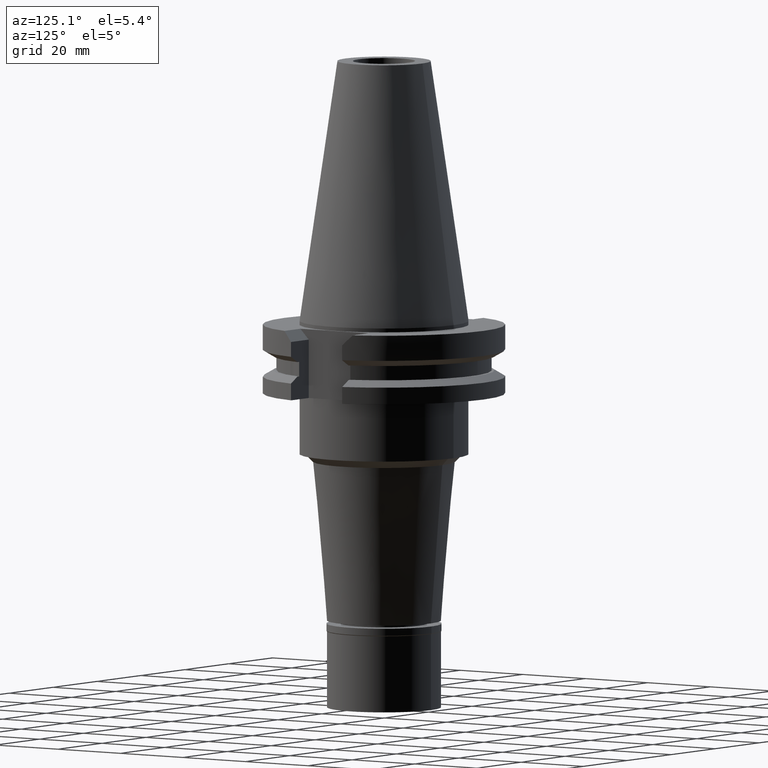
[diagram: clean part render]
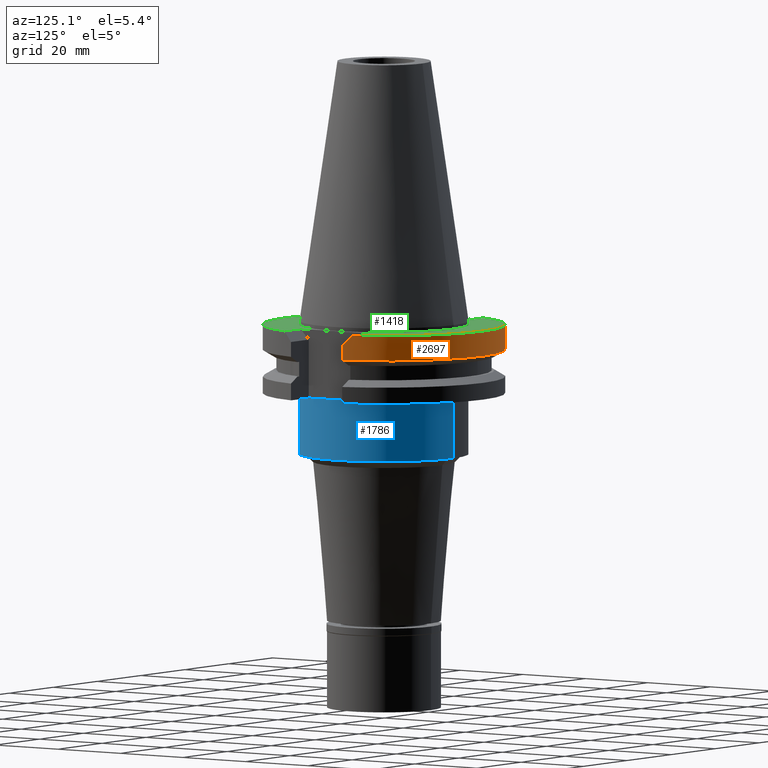
[diagram: same view with three faces highlighted in distinct colors, each labeled with its STEP entity id]
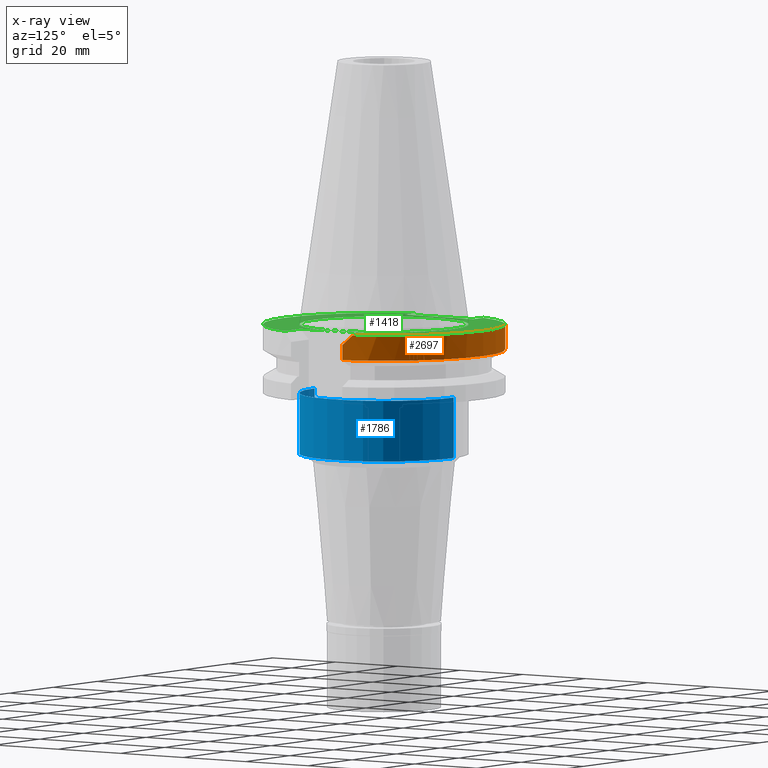
[diagram: x-ray of the same camera — body ghosted, the three highlighted faces saturated]
A machine part, auxiliary view with three faces highlighted in distinct colors.
The next image is the same camera in x-ray (body ghosted, the three faces saturated) — at least one of them is partly hidden behind the body in this view.
Their STEP definitions:

[orange] entity #2697 — the highlighted cylindrical surface (partial cylindrical patch) has radius 31.75 mm, axis along (0, 0, -1).
#128 = VERTEX_POINT ( 'NONE', #999 ) ;
#171 = EDGE_CURVE ( 'NONE', #3260, #2244, #192, .T. ) ;
#192 = LINE ( 'NONE', #1239, #757 ) ;
#309 = AXIS2_PLACEMENT_3D ( 'NONE', #1724, #375, #426 ) ;
#375 = DIRECTION ( 'NONE',  ( 0.0000000000000000000, 0.0000000000000000000, -1.000000000000000000 ) ) ;
#387 = CIRCLE ( 'NONE', #1915, 31.74999999999998579 ) ;
#426 = DIRECTION ( 'NONE',  ( 0.0000000000000000000, 1.000000000000000000, 0.0000000000000000000 ) ) ;
#441 = EDGE_CURVE ( 'NONE', #2107, #128, #1224, .T. ) ;
#466 = CARTESIAN_POINT ( 'NONE',  ( -30.67550162588999640, 8.189999999999999503, -3.700000000000000178 ) ) ;
#587 = VERTEX_POINT ( 'NONE', #1407 ) ;
#654 = CARTESIAN_POINT ( 'NONE',  ( 30.14799306409551960, 10.00266721625513888, -1.887332783744861242 ) ) ;
#681 = CARTESIAN_POINT ( 'NONE',  ( -30.67550146537999822, 8.190000601174999062, -7.608157985471001084 ) ) ;
#715 = EDGE_CURVE ( 'NONE', #587, #2107, #2088, .T. ) ;
#757 = VECTOR ( 'NONE', #3079, 1000.000000000000227 ) ;
#804 = CARTESIAN_POINT ( 'NONE',  ( -29.82399034335000110, 10.89000000000000057, -1.000000000000000000 ) ) ;
#920 = ORIENTED_EDGE ( 'NONE', *, *, #715, .F. ) ;
#922 = DIRECTION ( 'NONE',  ( 0.0000000000000000000, -1.000000000000000000, 0.0000000000000000000 ) ) ;
#927 = EDGE_CURVE ( 'NONE', #587, #2244, #387, .T. ) ;
#999 = CARTESIAN_POINT ( 'NONE',  ( 29.82399034335000110, 10.89000000000000057, -1.000000000001000089 ) ) ;
#1049 = ORIENTED_EDGE ( 'NONE', *, *, #171, .F. ) ;
#1135 = CARTESIAN_POINT ( 'NONE',  ( 30.43183015827552040, 9.102667216255303728, -2.787332783744695064 ) ) ;
#1201 = CARTESIAN_POINT ( 'NONE',  ( -29.82399034335000110, 10.89000000000000057, -1.000000000000000000 ) ) ;
#1224 = B_SPLINE_CURVE_WITH_KNOTS ( 'NONE', 3,
 ( #2992, #1135, #654, #2734 ),
 .UNSPECIFIED., .F., .F.,
 ( 4, 4 ),
 ( 0.0000000000000000000, 1.000000000000000000 ),
 .UNSPECIFIED. ) ;
#1239 = CARTESIAN_POINT ( 'NONE',  ( -30.67550162588999640, 8.189999999999999503, -3.700000000000000178 ) ) ;
#1407 = CARTESIAN_POINT ( 'NONE',  ( 30.67550165918999738, 8.189999875278999752, -7.608164472509999499 ) ) ;
#1566 = EDGE_LOOP ( 'NONE', ( #3017, #1049, #3269, #1666, #2047, #920 ) ) ;
#1666 = ORIENTED_EDGE ( 'NONE', *, *, #2774, .T. ) ;
#1682 = EDGE_CURVE ( 'NONE', #2661, #3260, #3101, .T. ) ;
#1724 = CARTESIAN_POINT ( 'NONE',  ( 0.0000000000000000000, 2.160368802205999604E-14, -1.000000000000000000 ) ) ;
#1767 = CARTESIAN_POINT ( 'NONE',  ( -30.43183015827551330, 9.102667216255303728, -2.787332783744695064 ) ) ;
#1843 = CIRCLE ( 'NONE', #309, 31.75000000000000000 ) ;
#1915 = AXIS2_PLACEMENT_3D ( 'NONE', #2828, #2583, #2903 ) ;
#1930 = CARTESIAN_POINT ( 'NONE',  ( 0.0000000000000000000, 2.160368802205999604E-14, 76.40749999999999886 ) ) ;
#1983 = CARTESIAN_POINT ( 'NONE',  ( -30.14799306409551249, 10.00266721625513888, -1.887332783744861242 ) ) ;
#2047 = ORIENTED_EDGE ( 'NONE', *, *, #441, .F. ) ;
#2088 = LINE ( 'NONE', #2340, #2669 ) ;
#2107 = VERTEX_POINT ( 'NONE', #2392 ) ;
#2214 = DIRECTION ( 'NONE',  ( 0.0000000000000000000, 0.0000000000000000000, -1.000000000000000000 ) ) ;
#2244 = VERTEX_POINT ( 'NONE', #681 ) ;
#2340 = CARTESIAN_POINT ( 'NONE',  ( 30.67550165918999738, 8.189999875278999752, -7.608164472509999499 ) ) ;
#2392 = CARTESIAN_POINT ( 'NONE',  ( 30.67550162588999640, 8.189999999999999503, -3.700000000000000178 ) ) ;
#2493 = CYLINDRICAL_SURFACE ( 'NONE', #2703, 31.75000000000000000 ) ;
#2579 = CARTESIAN_POINT ( 'NONE',  ( -30.67550162588999640, 8.189999999999999503, -3.700000000000000178 ) ) ;
#2583 = DIRECTION ( 'NONE',  ( 0.0000000000000000000, 0.0000000000000000000, 1.000000000000000000 ) ) ;
#2661 = VERTEX_POINT ( 'NONE', #804 ) ;
#2669 = VECTOR ( 'NONE', #3122, 1000.000000000000114 ) ;
#2697 = ADVANCED_FACE ( 'NONE', ( #2742 ), #2493, .T. ) ;
#2703 = AXIS2_PLACEMENT_3D ( 'NONE', #1930, #2214, #922 ) ;
#2734 = CARTESIAN_POINT ( 'NONE',  ( 29.82399034335000110, 10.89000000000000057, -1.000000000001000089 ) ) ;
#2742 = FACE_OUTER_BOUND ( 'NONE', #1566, .T. ) ;
#2774 = EDGE_CURVE ( 'NONE', #2661, #128, #1843, .T. ) ;
#2828 = CARTESIAN_POINT ( 'NONE',  ( 0.0000000000000000000, 1.121665249527999917E-14, -7.608163357944999206 ) ) ;
#2903 = DIRECTION ( 'NONE',  ( 0.9661575315241073270, 0.2579527559055020958, 0.0000000000000000000 ) ) ;
#2992 = CARTESIAN_POINT ( 'NONE',  ( 30.67550162588999640, 8.189999999999999503, -3.700000000000000178 ) ) ;
#3017 = ORIENTED_EDGE ( 'NONE', *, *, #927, .T. ) ;
#3079 = DIRECTION ( 'NONE',  ( 4.106949620130950437E-08, 1.538255782612980655E-07, -0.9999999999999872324 ) ) ;
#3101 = B_SPLINE_CURVE_WITH_KNOTS ( 'NONE', 3,
 ( #1201, #1983, #1767, #466 ),
 .UNSPECIFIED., .F., .F.,
 ( 4, 4 ),
 ( 0.0000000000000000000, 1.000000000000000000 ),
 .UNSPECIFIED. ) ;
#3122 = DIRECTION ( 'NONE',  ( -8.520540617844995460E-09, 3.191302751658998379E-08, 0.9999999999999994449 ) ) ;
#3260 = VERTEX_POINT ( 'NONE', #2579 ) ;
#3269 = ORIENTED_EDGE ( 'NONE', *, *, #1682, .F. ) ;

[blue] entity #1786 — the highlighted cylindrical surface (partial cylindrical patch) has radius 22.225 mm, axis along (0, 0, -1).
#216 = DIRECTION ( 'NONE',  ( 0.0000000000000000000, -1.000000000000000000, 0.0000000000000000000 ) ) ;
#222 = VECTOR ( 'NONE', #621, 1000.000000000000000 ) ;
#228 = CARTESIAN_POINT ( 'NONE',  ( 0.0000000000000000000, 2.160368802205999604E-14, -19.05000000000000071 ) ) ;
#377 = EDGE_CURVE ( 'NONE', #2246, #1169, #1630, .T. ) ;
#389 = EDGE_LOOP ( 'NONE', ( #1374, #488, #1045, #1962 ) ) ;
#400 = CYLINDRICAL_SURFACE ( 'NONE', #2909, 22.22500000000000142 ) ;
#405 = CARTESIAN_POINT ( 'NONE',  ( 0.0000000000000000000, 22.22500000000000142, -35.00000000000000000 ) ) ;
#450 = DIRECTION ( 'NONE',  ( 0.0000000000000000000, -1.000000000000000000, 0.0000000000000000000 ) ) ;
#488 = ORIENTED_EDGE ( 'NONE', *, *, #377, .T. ) ;
#503 = DIRECTION ( 'NONE',  ( 0.0000000000000000000, 0.0000000000000000000, -1.000000000000000000 ) ) ;
#523 = CIRCLE ( 'NONE', #626, 22.22500000000000142 ) ;
#621 = DIRECTION ( 'NONE',  ( 0.0000000000000000000, 0.0000000000000000000, -1.000000000000000000 ) ) ;
#626 = AXIS2_PLACEMENT_3D ( 'NONE', #228, #503, #1545 ) ;
#656 = FACE_OUTER_BOUND ( 'NONE', #389, .T. ) ;
#747 = CARTESIAN_POINT ( 'NONE',  ( 0.0000000000000000000, 2.160368802205999604E-14, -35.00000000000000000 ) ) ;
#947 = EDGE_CURVE ( 'NONE', #2154, #1186, #1893, .T. ) ;
#1045 = ORIENTED_EDGE ( 'NONE', *, *, #3263, .T. ) ;
#1059 = DIRECTION ( 'NONE',  ( 0.0000000000000000000, 0.0000000000000000000, -1.000000000000000000 ) ) ;
#1090 = VECTOR ( 'NONE', #1059, 1000.000000000000000 ) ;
#1169 = VERTEX_POINT ( 'NONE', #2739 ) ;
#1186 = VERTEX_POINT ( 'NONE', #405 ) ;
#1228 = CARTESIAN_POINT ( 'NONE',  ( 0.0000000000000000000, 22.22500000000000142, -19.05000000000000071 ) ) ;
#1374 = ORIENTED_EDGE ( 'NONE', *, *, #1970, .T. ) ;
#1536 = DIRECTION ( 'NONE',  ( 0.0000000000000000000, 0.0000000000000000000, 1.000000000000000000 ) ) ;
#1545 = DIRECTION ( 'NONE',  ( 0.0000000000000000000, 1.000000000000000000, 0.0000000000000000000 ) ) ;
#1630 = LINE ( 'NONE', #3196, #1090 ) ;
#1737 = CIRCLE ( 'NONE', #2445, 22.22500000000000142 ) ;
#1751 = DIRECTION ( 'NONE',  ( 0.0000000000000000000, 0.0000000000000000000, -1.000000000000000000 ) ) ;
#1786 = ADVANCED_FACE ( 'NONE', ( #656 ), #400, .T. ) ;
#1893 = LINE ( 'NONE', #1961, #222 ) ;
#1961 = CARTESIAN_POINT ( 'NONE',  ( 0.0000000000000000000, 22.22500000000000142, -19.05000000000000071 ) ) ;
#1962 = ORIENTED_EDGE ( 'NONE', *, *, #947, .F. ) ;
#1970 = EDGE_CURVE ( 'NONE', #2154, #2246, #523, .T. ) ;
#2154 = VERTEX_POINT ( 'NONE', #1228 ) ;
#2246 = VERTEX_POINT ( 'NONE', #2776 ) ;
#2445 = AXIS2_PLACEMENT_3D ( 'NONE', #747, #1536, #216 ) ;
#2739 = CARTESIAN_POINT ( 'NONE',  ( 0.0000000000000000000, -22.22500000000000142, -35.00000000000000000 ) ) ;
#2776 = CARTESIAN_POINT ( 'NONE',  ( 0.0000000000000000000, -22.22500000000000142, -19.05000000000000071 ) ) ;
#2909 = AXIS2_PLACEMENT_3D ( 'NONE', #3040, #1751, #450 ) ;
#3040 = CARTESIAN_POINT ( 'NONE',  ( 0.0000000000000000000, 2.160368802205999604E-14, 76.40749999999999886 ) ) ;
#3196 = CARTESIAN_POINT ( 'NONE',  ( 0.0000000000000000000, -22.22500000000000142, -19.05000000000000071 ) ) ;
#3263 = EDGE_CURVE ( 'NONE', #1169, #1186, #1737, .T. ) ;

[green] entity #1418 — the highlighted planar face has unit normal (0, 0, -1).
#9 = FACE_OUTER_BOUND ( 'NONE', #107, .T. ) ;
#44 = DIRECTION ( 'NONE',  ( 1.000000000000000000, -5.877118954907999932E-14, 0.0000000000000000000 ) ) ;
#69 = EDGE_CURVE ( 'NONE', #2520, #2000, #2328, .T. ) ;
#74 = DIRECTION ( 'NONE',  ( 0.0000000000000000000, -1.000000000000000000, 0.0000000000000000000 ) ) ;
#92 = CARTESIAN_POINT ( 'NONE',  ( 0.0000000000000000000, 2.160368802205999604E-14, -1.000000000000000000 ) ) ;
#107 = EDGE_LOOP ( 'NONE', ( #679, #3283, #3236, #1793, #515, #875, #1430, #343 ) ) ;
#128 = VERTEX_POINT ( 'NONE', #999 ) ;
#206 = CARTESIAN_POINT ( 'NONE',  ( 22.57000000000000028, 10.89000000000000057, -1.000000000000000000 ) ) ;
#237 = CARTESIAN_POINT ( 'NONE',  ( -24.98000000000000043, -10.89000000000000057, -1.000000000000000000 ) ) ;
#239 = CARTESIAN_POINT ( 'NONE',  ( -29.82399034335000110, -10.89000000000000057, -1.000000000001000089 ) ) ;
#285 = VERTEX_POINT ( 'NONE', #565 ) ;
#306 = VECTOR ( 'NONE', #358, 1000.000000000000000 ) ;
#309 = AXIS2_PLACEMENT_3D ( 'NONE', #1724, #375, #426 ) ;
#343 = ORIENTED_EDGE ( 'NONE', *, *, #69, .F. ) ;
#358 = DIRECTION ( 'NONE',  ( 1.000000000000000000, 6.024046928780999571E-14, 0.0000000000000000000 ) ) ;
#375 = DIRECTION ( 'NONE',  ( 0.0000000000000000000, 0.0000000000000000000, -1.000000000000000000 ) ) ;
#426 = DIRECTION ( 'NONE',  ( 0.0000000000000000000, 1.000000000000000000, 0.0000000000000000000 ) ) ;
#435 = VERTEX_POINT ( 'NONE', #2696 ) ;
#456 = CARTESIAN_POINT ( 'NONE',  ( -24.98000000000000043, 10.89000000000000057, -1.000000000000000000 ) ) ;
#515 = ORIENTED_EDGE ( 'NONE', *, *, #2851, .T. ) ;
#538 = DIRECTION ( 'NONE',  ( 0.0000000000000000000, 0.0000000000000000000, -1.000000000000000000 ) ) ;
#541 = ORIENTED_EDGE ( 'NONE', *, *, #825, .F. ) ;
#565 = CARTESIAN_POINT ( 'NONE',  ( 0.0000000000000000000, -22.22500000000000142, -1.000000000000000000 ) ) ;
#596 = CIRCLE ( 'NONE', #2461, 22.22500000000000142 ) ;
#646 = VERTEX_POINT ( 'NONE', #1803 ) ;
#679 = ORIENTED_EDGE ( 'NONE', *, *, #1410, .T. ) ;
#804 = CARTESIAN_POINT ( 'NONE',  ( -29.82399034335000110, 10.89000000000000057, -1.000000000000000000 ) ) ;
#825 = EDGE_CURVE ( 'NONE', #285, #1604, #596, .T. ) ;
#875 = ORIENTED_EDGE ( 'NONE', *, *, #1483, .F. ) ;
#999 = CARTESIAN_POINT ( 'NONE',  ( 29.82399034335000110, 10.89000000000000057, -1.000000000001000089 ) ) ;
#1077 = CARTESIAN_POINT ( 'NONE',  ( 22.57000000000000028, -10.89000000000000057, -1.000000000000000000 ) ) ;
#1123 = CIRCLE ( 'NONE', #1448, 22.22500000000000142 ) ;
#1175 = CARTESIAN_POINT ( 'NONE',  ( 0.0000000000000000000, 2.160368802205999604E-14, -1.000000000000000000 ) ) ;
#1208 = AXIS2_PLACEMENT_3D ( 'NONE', #2869, #538, #2627 ) ;
#1307 = CARTESIAN_POINT ( 'NONE',  ( 22.57000000000000028, 10.89000000000000057, -1.000000000000000000 ) ) ;
#1389 = EDGE_LOOP ( 'NONE', ( #2421, #541 ) ) ;
#1399 = VECTOR ( 'NONE', #3314, 1000.000000000000000 ) ;
#1409 = CARTESIAN_POINT ( 'NONE',  ( -24.98000000000000043, 10.89000000000000057, -1.000000000000000000 ) ) ;
#1410 = EDGE_CURVE ( 'NONE', #2520, #128, #2611, .T. ) ;
#1418 = ADVANCED_FACE ( 'NONE', ( #9, #1840 ), #1858, .F. ) ;
#1430 = ORIENTED_EDGE ( 'NONE', *, *, #2028, .F. ) ;
#1432 = DIRECTION ( 'NONE',  ( 0.0000000000000000000, 0.0000000000000000000, 1.000000000000000000 ) ) ;
#1448 = AXIS2_PLACEMENT_3D ( 'NONE', #1175, #1432, #3004 ) ;
#1478 = VECTOR ( 'NONE', #44, 1000.000000000000000 ) ;
#1483 = EDGE_CURVE ( 'NONE', #646, #2497, #2082, .T. ) ;
#1570 = EDGE_CURVE ( 'NONE', #3355, #435, #1648, .T. ) ;
#1604 = VERTEX_POINT ( 'NONE', #1611 ) ;
#1611 = CARTESIAN_POINT ( 'NONE',  ( 0.0000000000000000000, 22.22500000000000142, -1.000000000000000000 ) ) ;
#1648 = LINE ( 'NONE', #1409, #2752 ) ;
#1724 = CARTESIAN_POINT ( 'NONE',  ( 0.0000000000000000000, 2.160368802205999604E-14, -1.000000000000000000 ) ) ;
#1727 = CARTESIAN_POINT ( 'NONE',  ( -24.98000000000000043, 10.89000000000000057, -1.000000000000000000 ) ) ;
#1793 = ORIENTED_EDGE ( 'NONE', *, *, #1570, .T. ) ;
#1803 = CARTESIAN_POINT ( 'NONE',  ( 29.82399034335000110, -10.89000000000000057, -1.000000000001000089 ) ) ;
#1840 = FACE_BOUND ( 'NONE', #1389, .T. ) ;
#1843 = CIRCLE ( 'NONE', #309, 31.75000000000000000 ) ;
#1858 = PLANE ( 'NONE',  #1208 ) ;
#1868 = LINE ( 'NONE', #1077, #306 ) ;
#1949 = VECTOR ( 'NONE', #3342, 1000.000000000000000 ) ;
#2000 = VERTEX_POINT ( 'NONE', #2424 ) ;
#2028 = EDGE_CURVE ( 'NONE', #2000, #646, #1868, .T. ) ;
#2082 = CIRCLE ( 'NONE', #2239, 31.75000000000000000 ) ;
#2133 = CARTESIAN_POINT ( 'NONE',  ( 0.0000000000000000000, 2.160368802205999604E-14, -1.000000000000000000 ) ) ;
#2158 = DIRECTION ( 'NONE',  ( 0.0000000000000000000, 0.0000000000000000000, -1.000000000000000000 ) ) ;
#2239 = AXIS2_PLACEMENT_3D ( 'NONE', #92, #2158, #74 ) ;
#2302 = LINE ( 'NONE', #237, #1949 ) ;
#2321 = EDGE_CURVE ( 'NONE', #3355, #2661, #3036, .T. ) ;
#2328 = LINE ( 'NONE', #3351, #2988 ) ;
#2342 = EDGE_CURVE ( 'NONE', #1604, #285, #1123, .T. ) ;
#2385 = DIRECTION ( 'NONE',  ( 0.0000000000000000000, -1.000000000000000000, 0.0000000000000000000 ) ) ;
#2421 = ORIENTED_EDGE ( 'NONE', *, *, #2342, .F. ) ;
#2424 = CARTESIAN_POINT ( 'NONE',  ( 22.57000000000000028, -10.89000000000000057, -1.000000000000000000 ) ) ;
#2451 = DIRECTION ( 'NONE',  ( 0.0000000000000000000, -1.000000000000000000, 0.0000000000000000000 ) ) ;
#2461 = AXIS2_PLACEMENT_3D ( 'NONE', #2133, #3172, #2385 ) ;
#2497 = VERTEX_POINT ( 'NONE', #239 ) ;
#2520 = VERTEX_POINT ( 'NONE', #206 ) ;
#2611 = LINE ( 'NONE', #1307, #1478 ) ;
#2627 = DIRECTION ( 'NONE',  ( 0.0000000000000000000, -1.000000000000000000, 0.0000000000000000000 ) ) ;
#2661 = VERTEX_POINT ( 'NONE', #804 ) ;
#2696 = CARTESIAN_POINT ( 'NONE',  ( -24.98000000000000043, -10.89000000000000057, -1.000000000000000000 ) ) ;
#2752 = VECTOR ( 'NONE', #2451, 1000.000000000000000 ) ;
#2774 = EDGE_CURVE ( 'NONE', #2661, #128, #1843, .T. ) ;
#2851 = EDGE_CURVE ( 'NONE', #435, #2497, #2302, .T. ) ;
#2869 = CARTESIAN_POINT ( 'NONE',  ( 0.0000000000000000000, 1.212400331155999925E-14, -1.000000000000000000 ) ) ;
#2988 = VECTOR ( 'NONE', #3064, 1000.000000000000000 ) ;
#3004 = DIRECTION ( 'NONE',  ( 0.0000000000000000000, 1.000000000000000000, 0.0000000000000000000 ) ) ;
#3036 = LINE ( 'NONE', #1727, #1399 ) ;
#3064 = DIRECTION ( 'NONE',  ( 0.0000000000000000000, -1.000000000000000000, 0.0000000000000000000 ) ) ;
#3172 = DIRECTION ( 'NONE',  ( 0.0000000000000000000, 0.0000000000000000000, 1.000000000000000000 ) ) ;
#3236 = ORIENTED_EDGE ( 'NONE', *, *, #2321, .F. ) ;
#3283 = ORIENTED_EDGE ( 'NONE', *, *, #2774, .F. ) ;
#3314 = DIRECTION ( 'NONE',  ( -1.000000000000000000, -8.801124924650999988E-14, 0.0000000000000000000 ) ) ;
#3342 = DIRECTION ( 'NONE',  ( -1.000000000000000000, 8.911138986208999927E-14, 0.0000000000000000000 ) ) ;
#3351 = CARTESIAN_POINT ( 'NONE',  ( 22.57000000000000028, 10.89000000000000057, -1.000000000000000000 ) ) ;
#3355 = VERTEX_POINT ( 'NONE', #456 ) ;